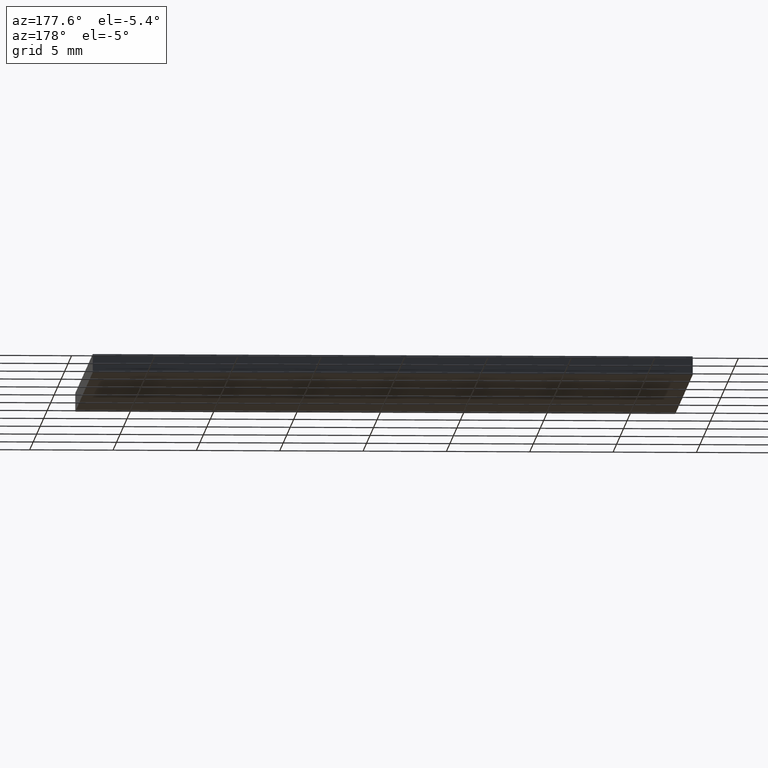
[diagram: clean part render]
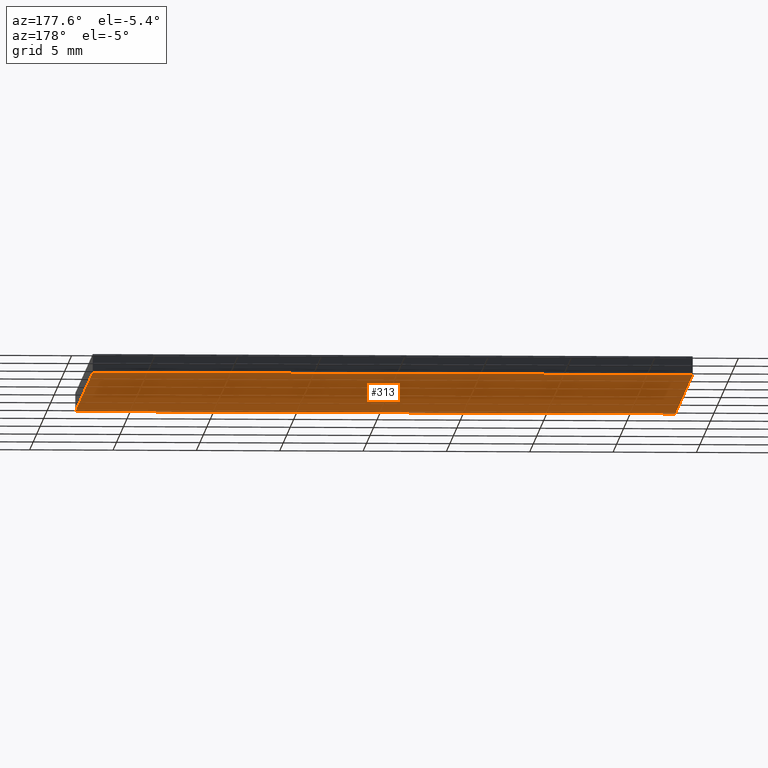
[diagram: same view with one face highlighted and labeled with its STEP entity id]
A machine part, auxiliary view. The second image highlights one B-rep face of the part: STEP entity #313.
In plain terms, the highlighted planar face has unit normal (0, 0, -1).
Its self-contained STEP definition (entity closure, byte-faithful):
#8 = VERTEX_POINT ( 'NONE', #110 ) ;
#13 = CARTESIAN_POINT ( 'NONE',  ( 17.99999999999999600, 12.49999999999999600, 0.0000000000000000000 ) ) ;
#22 = VERTEX_POINT ( 'NONE', #302 ) ;
#29 = VECTOR ( 'NONE', #33, 1000.000000000000000 ) ;
#32 = CARTESIAN_POINT ( 'NONE',  ( -18.00000000000000400, 12.49999999999999600, 0.0000000000000000000 ) ) ;
#33 = DIRECTION ( 'NONE',  ( 0.0000000000000000000, 1.000000000000000000, 0.0000000000000000000 ) ) ;
#35 = VECTOR ( 'NONE', #232, 1000.000000000000000 ) ;
#36 = CARTESIAN_POINT ( 'NONE',  ( -18.00000000000000400, -12.50000000000000400, 0.0000000000000000000 ) ) ;
#37 = AXIS2_PLACEMENT_3D ( 'NONE', #310, #73, #171 ) ;
#56 = EDGE_CURVE ( 'NONE', #78, #22, #201, .T. ) ;
#60 = EDGE_CURVE ( 'NONE', #22, #8, #261, .T. ) ;
#67 = ORIENTED_EDGE ( 'NONE', *, *, #159, .F. ) ;
#68 = DIRECTION ( 'NONE',  ( -0.0000000000000000000, -1.000000000000000000, -0.0000000000000000000 ) ) ;
#73 = DIRECTION ( 'NONE',  ( 0.0000000000000000000, 0.0000000000000000000, -1.000000000000000000 ) ) ;
#77 = FACE_OUTER_BOUND ( 'NONE', #107, .T. ) ;
#78 = VERTEX_POINT ( 'NONE', #32 ) ;
#84 = EDGE_CURVE ( 'NONE', #113, #78, #101, .T. ) ;
#101 = LINE ( 'NONE', #208, #35 ) ;
#107 = EDGE_LOOP ( 'NONE', ( #67, #131, #309, #251 ) ) ;
#110 = CARTESIAN_POINT ( 'NONE',  ( 17.99999999999999600, -12.50000000000000400, 0.0000000000000000000 ) ) ;
#113 = VERTEX_POINT ( 'NONE', #13 ) ;
#131 = ORIENTED_EDGE ( 'NONE', *, *, #60, .F. ) ;
#137 = PLANE ( 'NONE',  #37 ) ;
#159 = EDGE_CURVE ( 'NONE', #8, #113, #162, .T. ) ;
#162 = LINE ( 'NONE', #187, #29 ) ;
#164 = DIRECTION ( 'NONE',  ( 1.000000000000000000, 0.0000000000000000000, 0.0000000000000000000 ) ) ;
#171 = DIRECTION ( 'NONE',  ( -1.000000000000000000, 0.0000000000000000000, -0.0000000000000000000 ) ) ;
#185 = CARTESIAN_POINT ( 'NONE',  ( -18.00000000000000400, -12.50000000000000400, 0.0000000000000000000 ) ) ;
#187 = CARTESIAN_POINT ( 'NONE',  ( 17.99999999999999600, -12.50000000000000400, 0.0000000000000000000 ) ) ;
#201 = LINE ( 'NONE', #36, #296 ) ;
#208 = CARTESIAN_POINT ( 'NONE',  ( -18.00000000000000400, 12.49999999999999600, 0.0000000000000000000 ) ) ;
#232 = DIRECTION ( 'NONE',  ( -1.000000000000000000, -0.0000000000000000000, -0.0000000000000000000 ) ) ;
#239 = VECTOR ( 'NONE', #164, 1000.000000000000000 ) ;
#251 = ORIENTED_EDGE ( 'NONE', *, *, #84, .F. ) ;
#261 = LINE ( 'NONE', #185, #239 ) ;
#296 = VECTOR ( 'NONE', #68, 1000.000000000000000 ) ;
#302 = CARTESIAN_POINT ( 'NONE',  ( -18.00000000000000400, -12.50000000000000400, 0.0000000000000000000 ) ) ;
#309 = ORIENTED_EDGE ( 'NONE', *, *, #56, .F. ) ;
#310 = CARTESIAN_POINT ( 'NONE',  ( 0.0000000000000000000, 0.0000000000000000000, 0.0000000000000000000 ) ) ;
#313 = ADVANCED_FACE ( 'NONE', ( #77 ), #137, .T. ) ;